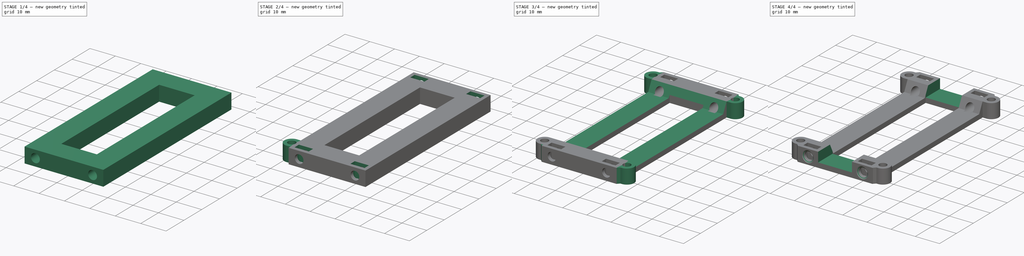
[diagram: build sequence overview — one tinted view per stage of 4, left to right]
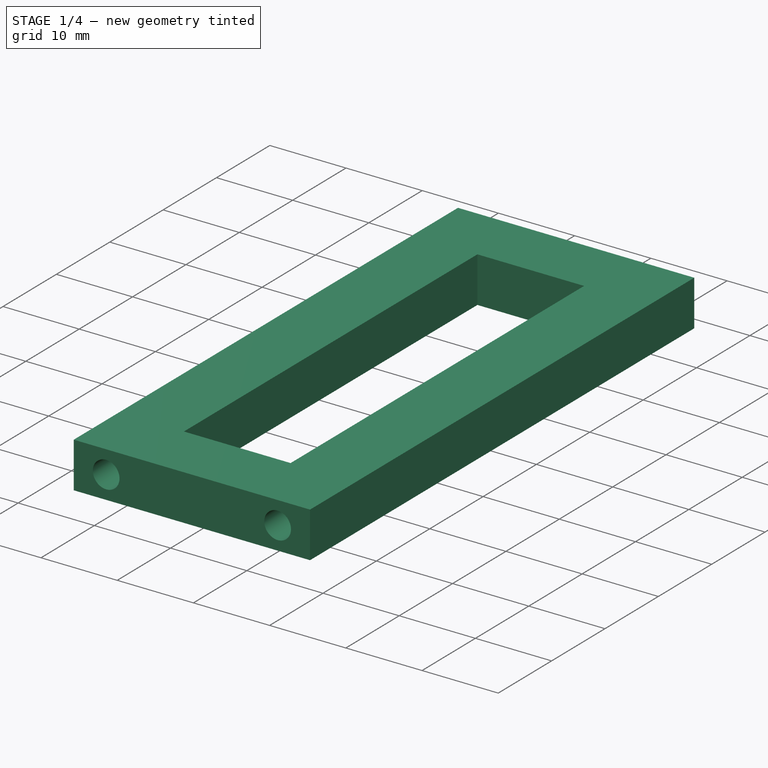
[diagram: stage 1 of 4 — iso view after this stage's code; geometry added in this stage tinted green]
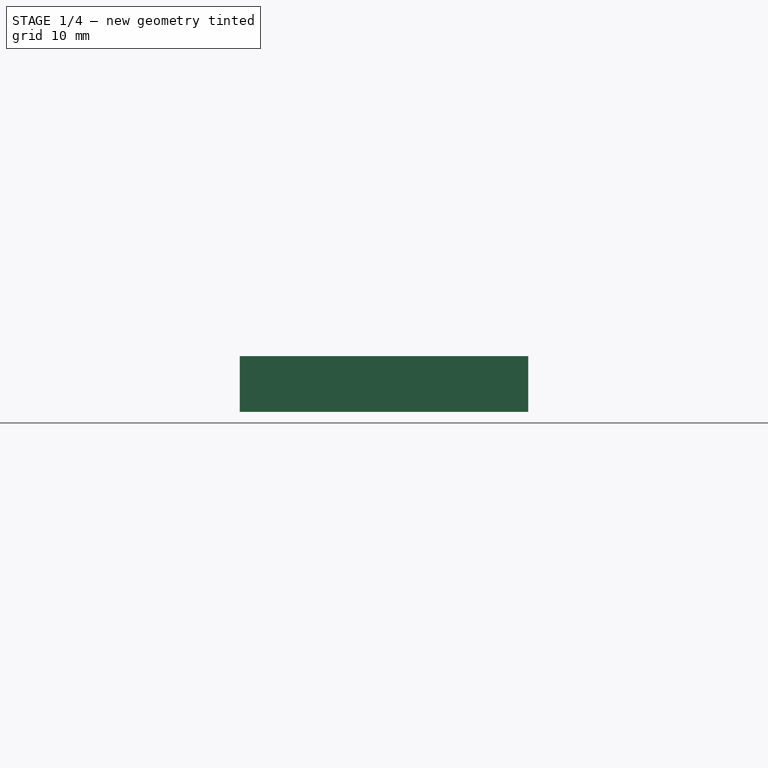
[diagram: stage 1 of 4 — front view after this stage's code; geometry added in this stage tinted green]
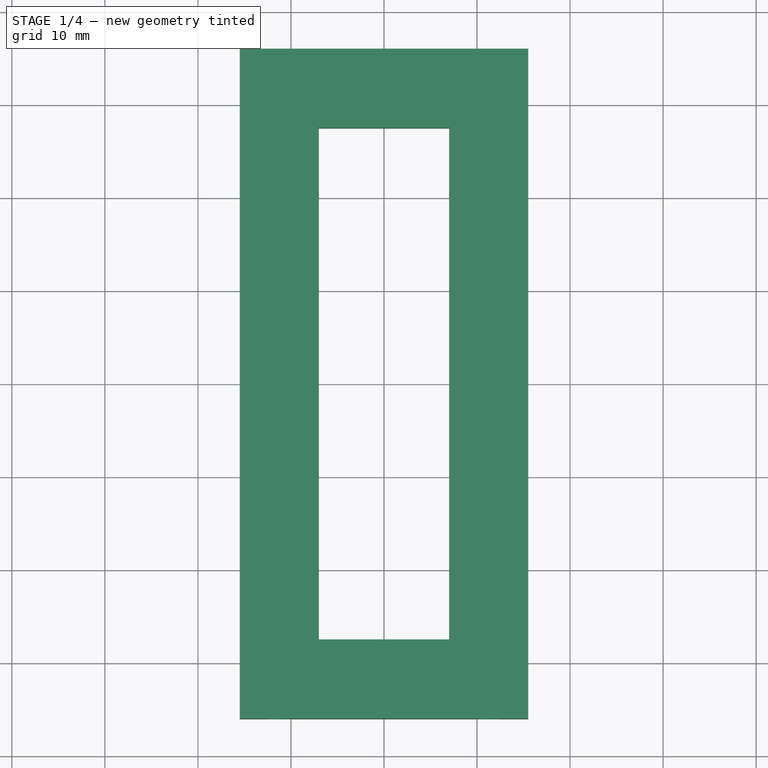
[diagram: stage 1 of 4 — top view after this stage's code; geometry added in this stage tinted green]
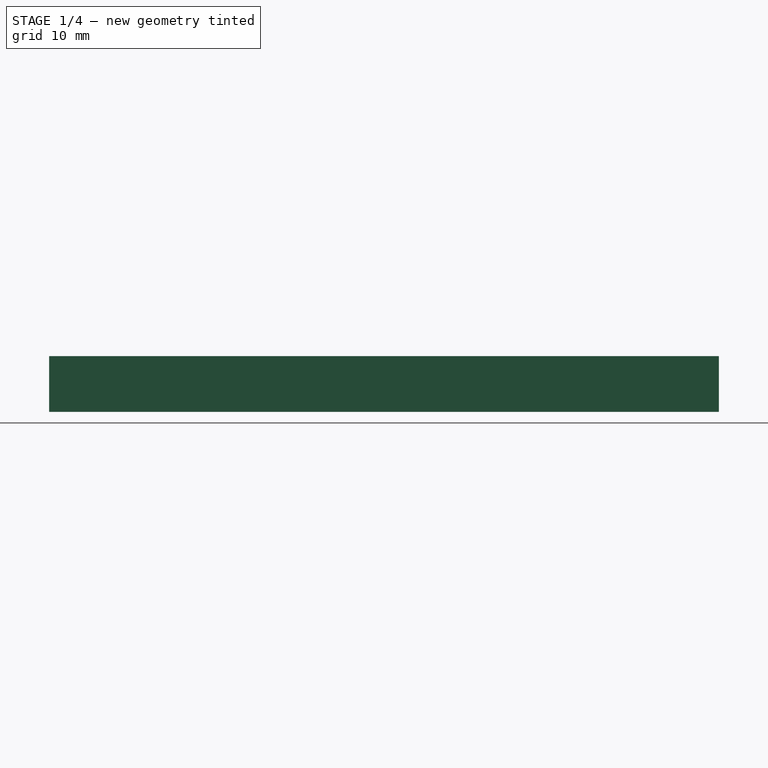
[diagram: stage 1 of 4 — right view after this stage's code; geometry added in this stage tinted green]
FCSTD DOCUMENT  (FreeCAD 0.16R6703 (Git))
Label: PartConnector
License: All rights reserved
LicenseURL: http://en.wikipedia.org/wiki/All_rights_reserved
objects: Sketcher::SketchObject×7, PartDesign::Pocket×5, PartDesign::Mirrored×5, PartDesign::Pad×2, PartDesign::MultiTransform×2, PartDesign::Chamfer×2
note: 30 computed .brp shape members not serialized (recipe doc carries the construction recipe); baked Part::Feature solids carry a one-line shape summary decoded from their .brp

FEATURE [Sketcher::SketchObject] Sketch
  expr: Constraints[21] = 22.5 - 2 * (0.5 * 5.5 + 1.5)
  expr: Constraints[20] = 72 - 2 * (5.5 + 3)
  expr: Constraints[9] = 22.5 + 5.5 + 3
  sketch-geometry (8):
    g0: LineSegment StartX=-15.5 StartY=36 StartZ=0 EndX=15.5 EndY=36 EndZ=0
    g1: LineSegment StartX=15.5 StartY=36 StartZ=0 EndX=15.5 EndY=-36 EndZ=0
    g2: LineSegment StartX=15.5 StartY=-36 StartZ=0 EndX=-15.5 EndY=-36 EndZ=0
    g3: LineSegment StartX=-15.5 StartY=-36 StartZ=0 EndX=-15.5 EndY=36 EndZ=0
    g4: LineSegment StartX=-7 StartY=27.5 StartZ=0 EndX=7 EndY=27.5 EndZ=0
    g5: LineSegment StartX=7 StartY=27.5 StartZ=0 EndX=7 EndY=-27.5 EndZ=0
    g6: LineSegment StartX=7 StartY=-27.5 StartZ=0 EndX=-7 EndY=-27.5 EndZ=0
    g7: LineSegment StartX=-7 StartY=-27.5 StartZ=0 EndX=-7 EndY=27.5 EndZ=0
  constraints (22):
    c: Coincident(g0,g1)
    c: Coincident(g1,g2)
    c: Coincident(g2,g3)
    c: Coincident(g3,g0)
    c: Horizontal(g0)
    c: Horizontal(g2)
    c: Vertical(g1)
    c: Vertical(g3)
    c: Symmetric(g2,g0,g-1)
    c: Distance(g0) = 31
    c: Distance(g3) = 72
    c: Coincident(g4,g5)
    c: Coincident(g5,g6)
    c: Coincident(g6,g7)
    c: Coincident(g7,g4)
    c: Horizontal(g4)
    c: Horizontal(g6)
    c: Vertical(g5)
    c: Vertical(g7)
    c: Symmetric(g6,g4,g-1)
    c: Distance(g7) = 55
    c: Distance(g6) = 14
FEATURE [PartDesign::Pad] Pad
  Length = 6
  Length2 = 100
  Midplane = true
  Sketch = -> Sketch
  Type = 0
FEATURE [Sketcher::SketchObject] Sketch001
  Placement = pos=(0,-36,0) rot=(1,0,0;1.5708rad)
  Support = -> Pad [Face3]
  sketch-geometry (2):
    g0: Circle CenterX=-11.25 CenterY=0 CenterZ=0 NormalX=0 NormalY=0 NormalZ=1 Radius=1.75
    g1: Circle CenterX=11.25 CenterY=0 CenterZ=0 NormalX=0 NormalY=0 NormalZ=1 Radius=1.75
  constraints (6):
    c: PointOnObject(g0,g-1)
    c: PointOnObject(g1,g-1)
    c: Symmetric(g0,g1,g-2)
    c: Distance(g0,g1) = 22.5
    c: Equal(g0,g1)
    c: Radius(g0) = 1.75
FEATURE [PartDesign::Pocket] Pocket  label="PlateCScrew1"
  Length = 10
  Sketch = -> Sketch001
  Type = 0
FEATURE [Sketcher::SketchObject] Sketch002
  Placement = pos=(0,36,0) rot=(0,0.707107,0.707107;3.14159rad)
  Support = -> Pocket [Face1]
  sketch-geometry (2):
    g0: Circle CenterX=-11.25 CenterY=0 CenterZ=0 NormalX=0 NormalY=0 NormalZ=1 Radius=1.75
    g1: Circle CenterX=11.25 CenterY=0 CenterZ=0 NormalX=0 NormalY=0 NormalZ=1 Radius=1.75
  constraints (6):
    c: PointOnObject(g0,g-1)
    c: PointOnObject(g1,g-1)
    c: Equal(g0,g1)
    c: Radius(g0) = 1.75
    c: Distance(g0,g1) = 22.5
    c: Symmetric(g0,g1,g-2)
FEATURE [PartDesign::Pocket] Pocket001  label="PlateCScrew2"
  Length = 10
  Sketch = -> Sketch002
  Type = 0
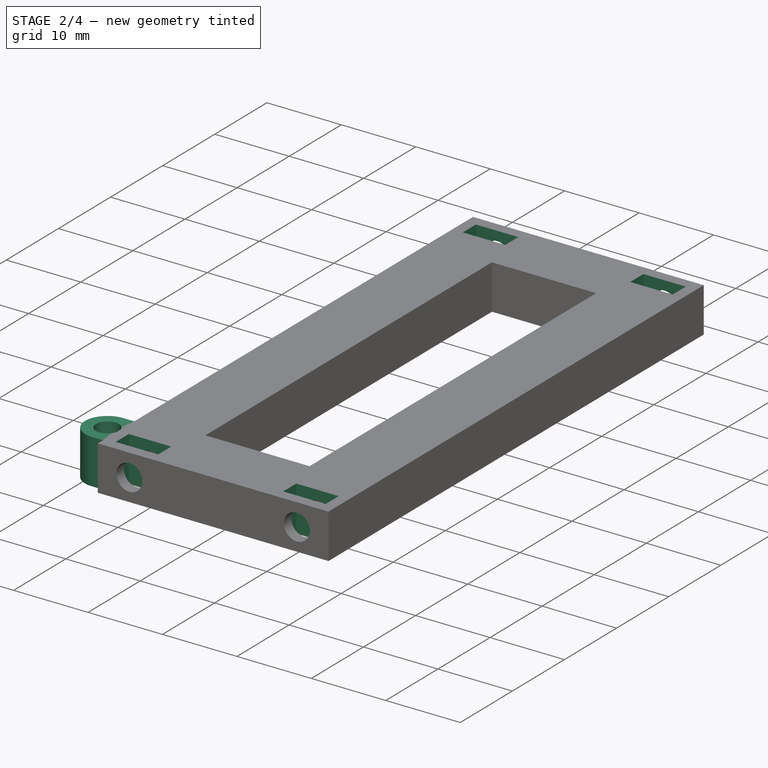
[diagram: stage 2 of 4 — iso view after this stage's code; geometry added in this stage tinted green]
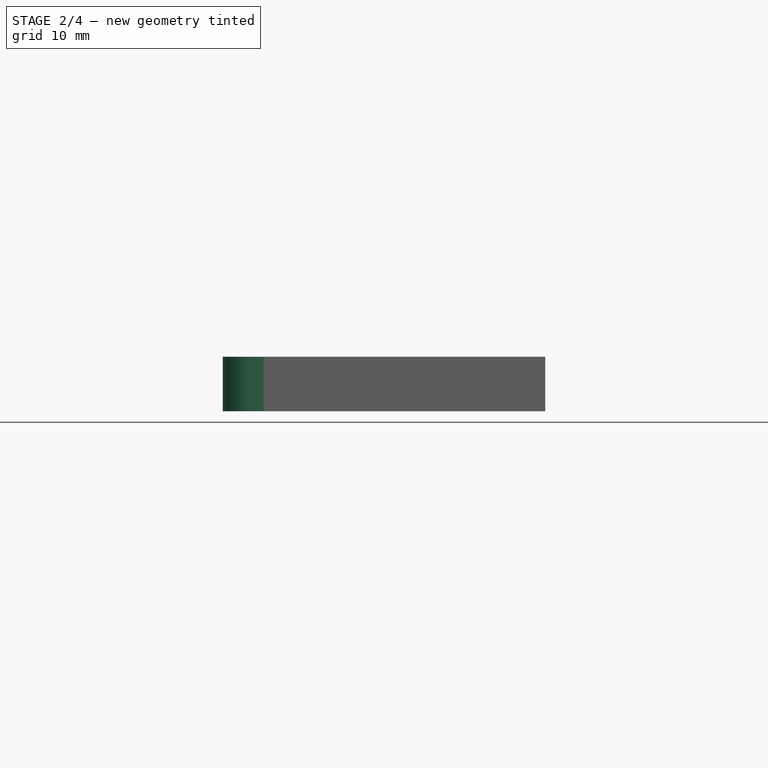
[diagram: stage 2 of 4 — front view after this stage's code; geometry added in this stage tinted green]
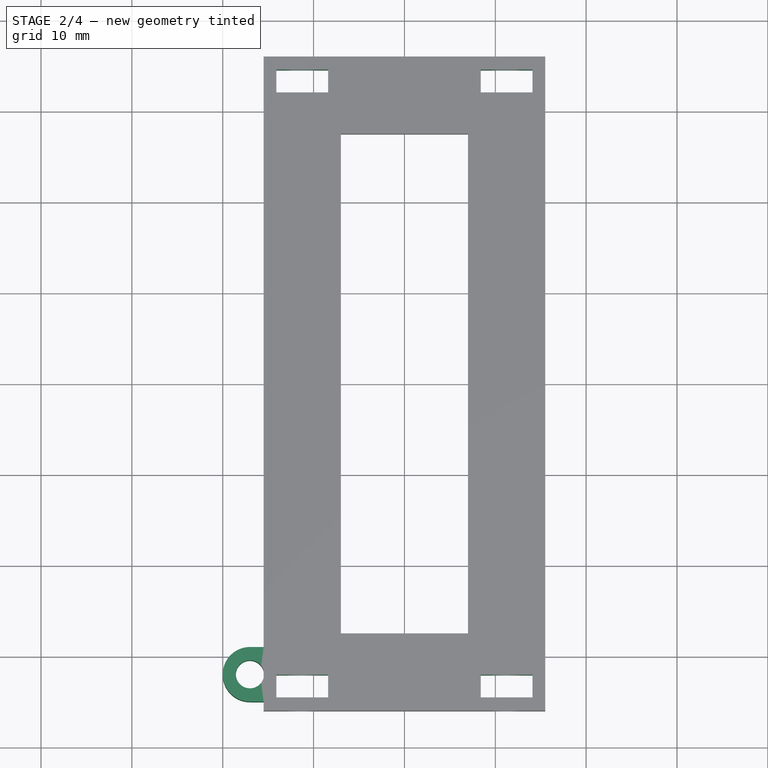
[diagram: stage 2 of 4 — top view after this stage's code; geometry added in this stage tinted green]
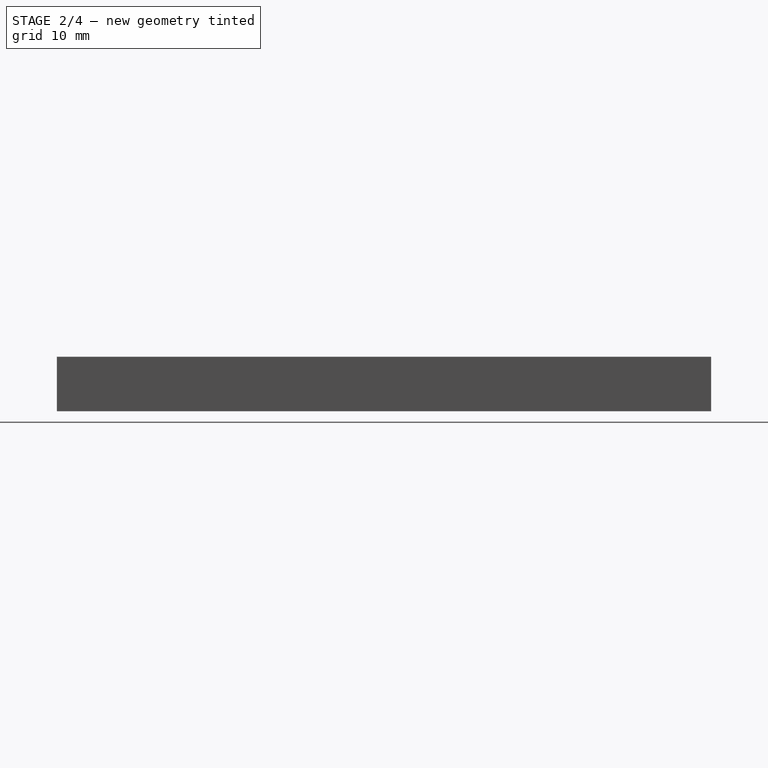
[diagram: stage 2 of 4 — right view after this stage's code; geometry added in this stage tinted green]
FEATURE [Sketcher::SketchObject] Sketch003
  Placement = pos=(0,0,3) rot=(0,0,1;0rad)
  Support = -> Pocket001 [Face4]
  expr: Constraints[10] = 72 - 2 * (1.2 + 1.5)
  sketch-geometry (8):
    g0: LineSegment [constr] StartX=-11.25 StartY=33.3 StartZ=0 EndX=11.25 EndY=33.3 EndZ=0
    g1: LineSegment [constr] StartX=11.25 StartY=33.3 StartZ=0 EndX=11.25 EndY=-33.3 EndZ=0
    g2: LineSegment [constr] StartX=11.25 StartY=-33.3 StartZ=0 EndX=-11.25 EndY=-33.3 EndZ=0
    g3: LineSegment [constr] StartX=-11.25 StartY=-33.3 StartZ=0 EndX=-11.25 EndY=33.3 EndZ=0
    g4: LineSegment StartX=-14.1 StartY=-34.55 StartZ=0 EndX=-8.4 EndY=-34.55 EndZ=0
    g5: LineSegment StartX=-8.4 StartY=-34.55 StartZ=0 EndX=-8.4 EndY=-32.05 EndZ=0
    g6: LineSegment StartX=-8.4 StartY=-32.05 StartZ=0 EndX=-14.1 EndY=-32.05 EndZ=0
    g7: LineSegment StartX=-14.1 StartY=-32.05 StartZ=0 EndX=-14.1 EndY=-34.55 EndZ=0
  constraints (22):
    c: Coincident(g0,g1)
    c: Coincident(g1,g2)
    c: Coincident(g2,g3)
    c: Coincident(g3,g0)
    c: Horizontal(g0)
    c: Horizontal(g2)
    c: Vertical(g1)
    c: Vertical(g3)
    c: Symmetric(g0,g1,g-1)
    c: Distance(g0) = 22.5
    c: Distance(g3) = 66.6
    c: Coincident(g4,g5)
    c: Coincident(g5,g6)
    c: Coincident(g6,g7)
    c: Coincident(g7,g4)
    c: Horizontal(g4)
    c: Horizontal(g6)
    c: Vertical(g5)
    c: Vertical(g7)
    c: Symmetric(g4,g5,g2)
    c: Distance(g6) = 5.7
    c: Distance(g7) = 2.5
FEATURE [PartDesign::Pocket] Pocket002  label="PlateNuts"
  Length = 3
  Sketch = -> Sketch003
  Type = 1
FEATURE [PartDesign::Mirrored] Mirrored
  MirrorPlane = -> Sketch003 [V_Axis]
FEATURE [PartDesign::Mirrored] Mirrored001
  MirrorPlane = -> Sketch003 [H_Axis]
FEATURE [PartDesign::MultiTransform] MultiTransform  label="Nut Placement"
  Originals = -> [Pocket002]
  Transformations = -> [Mirrored,Mirrored001]
FEATURE [Sketcher::SketchObject] Sketch004
  Placement = pos=(0,0,-3) rot=(1,0,0;3.14159rad)
  Support = -> MultiTransform [Face3]
  expr: Constraints[14] = 1.5 + 1.5
  expr: Constraints[10] = 70 - 6
  expr: Constraints[9] = 40 - 6
  sketch-geometry (9):
    g0: LineSegment [constr] StartX=-17 StartY=32 StartZ=0 EndX=17 EndY=32 EndZ=0
    g1: LineSegment [constr] StartX=17 StartY=32 StartZ=0 EndX=17 EndY=-32 EndZ=0
    g2: LineSegment [constr] StartX=17 StartY=-32 StartZ=0 EndX=-17 EndY=-32 EndZ=0
    g3: LineSegment [constr] StartX=-17 StartY=-32 StartZ=0 EndX=-17 EndY=32 EndZ=0
    g4: ArcOfCircle CenterX=-17 CenterY=32 CenterZ=0 NormalX=0 NormalY=0 NormalZ=1 Radius=3 StartAngle=1.5708 EndAngle=4.71239
    g5: LineSegment StartX=-17 StartY=35 StartZ=0 EndX=-15 EndY=35 EndZ=0
    g6: LineSegment StartX=-15 StartY=35 StartZ=0 EndX=-15 EndY=29 EndZ=0
    g7: LineSegment StartX=-15 StartY=29 StartZ=0 EndX=-17 EndY=29 EndZ=0
    g8: Circle CenterX=-17 CenterY=32 CenterZ=0 NormalX=0 NormalY=0 NormalZ=1 Radius=1.55
  constraints (24):
    c: Coincident(g0,g1)
    c: Coincident(g1,g2)
    c: Coincident(g2,g3)
    c: Coincident(g3,g0)
    c: Horizontal(g0)
    c: Horizontal(g2)
    c: Vertical(g1)
    c: Vertical(g3)
    c: Symmetric(g2,g0,g-1)
    c: Distance(g0) = 34
    c: Distance(g1) = 64
    c: Coincident(g4,g0)
    c: PointOnObject(g4,g3)
    c: Angle(g4) = 3.14159
    c: Radius(g4) = 3
    c: Tangent(g4,g5) = 1.5708
    c: Coincident(g5,g6)
    c: Vertical(g6)
    c: Coincident(g6,g7)
    c: Coincident(g7,g4)
    c: Horizontal(g7)
    c: Distance(g5) = 2
    c: Coincident(g8,g0)
    c: Radius(g8) = 1.55
FEATURE [PartDesign::Pad] Pad001  label="Upwards Connectors"
  Length = 6
  Length2 = 100
  Reversed = true
  Sketch = -> Sketch004
  Type = 0
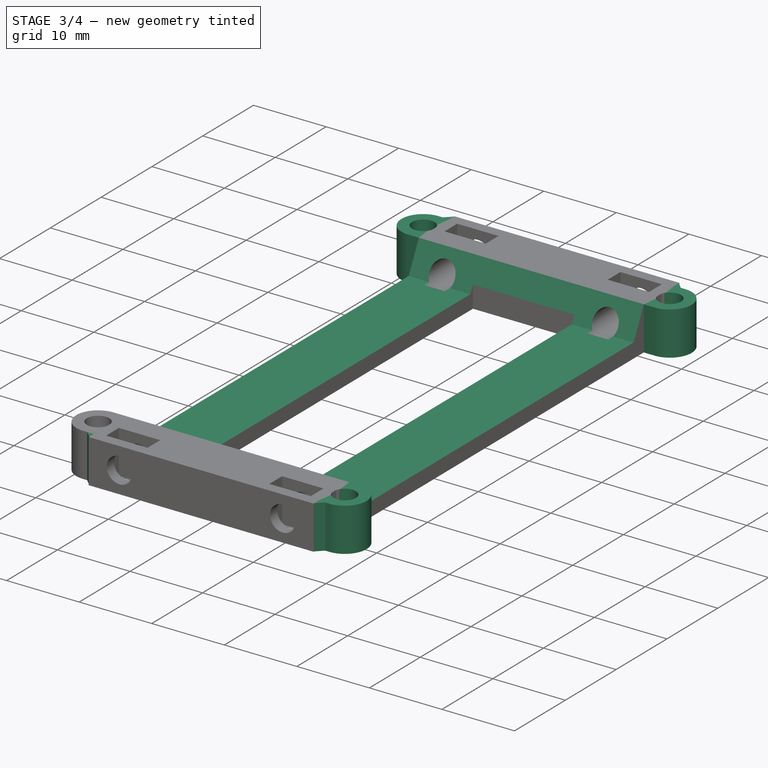
[diagram: stage 3 of 4 — iso view after this stage's code; geometry added in this stage tinted green]
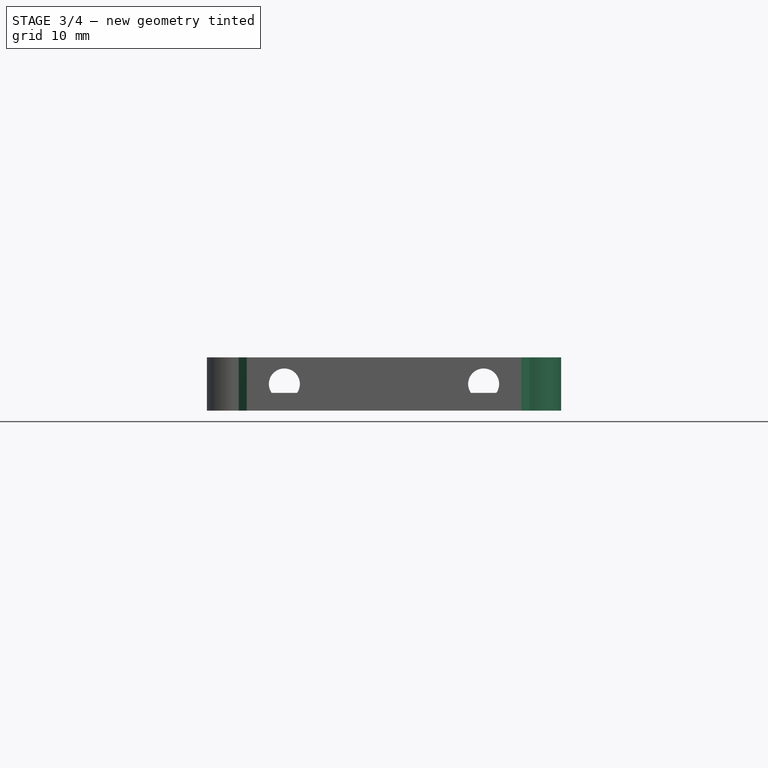
[diagram: stage 3 of 4 — front view after this stage's code; geometry added in this stage tinted green]
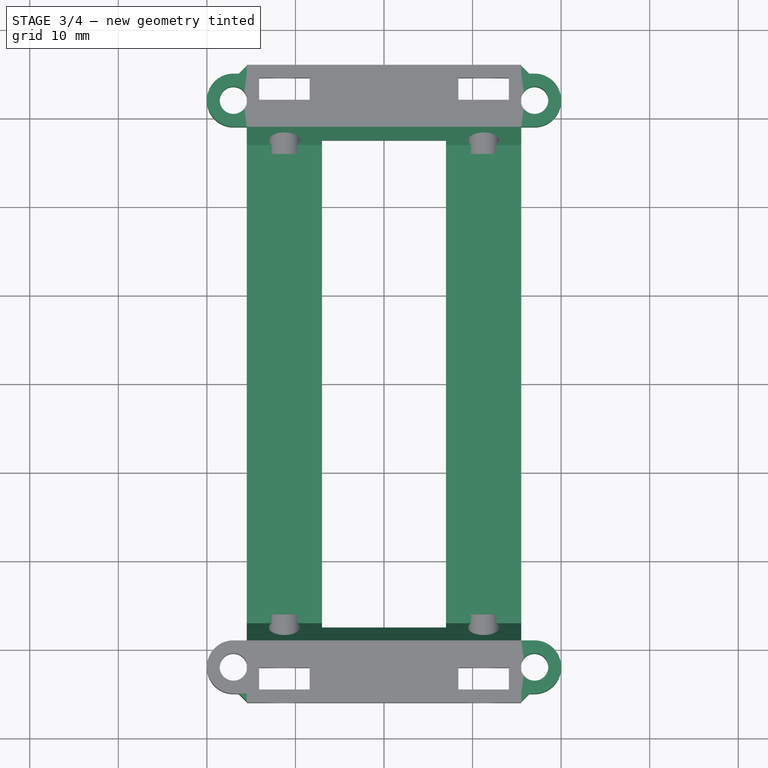
[diagram: stage 3 of 4 — top view after this stage's code; geometry added in this stage tinted green]
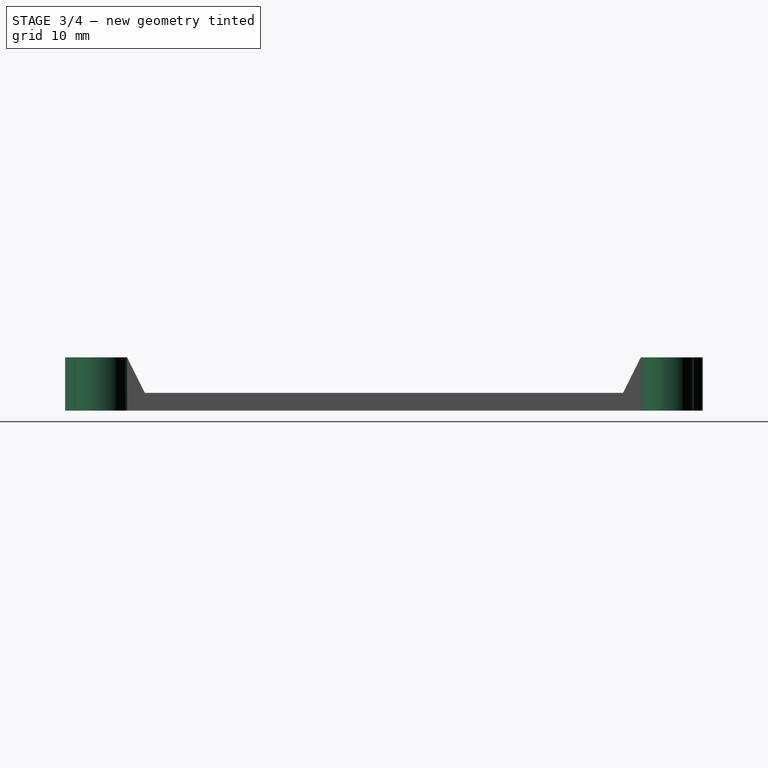
[diagram: stage 3 of 4 — right view after this stage's code; geometry added in this stage tinted green]
FEATURE [PartDesign::Mirrored] Mirrored002
  MirrorPlane = -> Sketch004 [V_Axis]
FEATURE [PartDesign::Mirrored] Mirrored003
  MirrorPlane = -> Sketch004 [H_Axis]
FEATURE [PartDesign::MultiTransform] MultiTransform001  label="Connector Placement"
  Originals = -> [Pad001]
  Transformations = -> [Mirrored002,Mirrored003]
FEATURE [Sketcher::SketchObject] Sketch005
  ExternalGeometry = -> [MultiTransform001]
  Placement = pos=(15.5,0,0) rot=(0.57735,0.57735,0.57735;2.0944rad)
  Support = -> MultiTransform001 [Face21]
  sketch-geometry (4):
    g0: LineSegment StartX=-27 StartY=-1 StartZ=0 EndX=27 EndY=-1 EndZ=0
    g1: LineSegment StartX=27 StartY=-1 StartZ=0 EndX=29 EndY=3 EndZ=0
    g2: LineSegment StartX=29 StartY=3 StartZ=0 EndX=-29 EndY=3 EndZ=0
    g3: LineSegment StartX=-29 StartY=3 StartZ=0 EndX=-27 EndY=-1 EndZ=0
  constraints (8):
    c: Horizontal(g0)
    c: Coincident(g0,g1)
    c: Coincident(g1,g2)
    c: Horizontal(g2)
    c: Coincident(g2,g3)
    c: Coincident(g3,g0)
    c: Symmetric(g0,g0,g-2)
    c: Symmetric(g1,g2,g-2)
FEATURE [PartDesign::Pocket] Pocket003  label="Prettifyer Pocket"
  Length = 5
  Sketch = -> Sketch005
  Type = 1
FEATURE [PartDesign::Chamfer] Chamfer  label="Outer Edge Chamfer"
  Base = -> Pocket003 [Edge6,Edge146,Edge133,Edge152]
  Size = 0.9
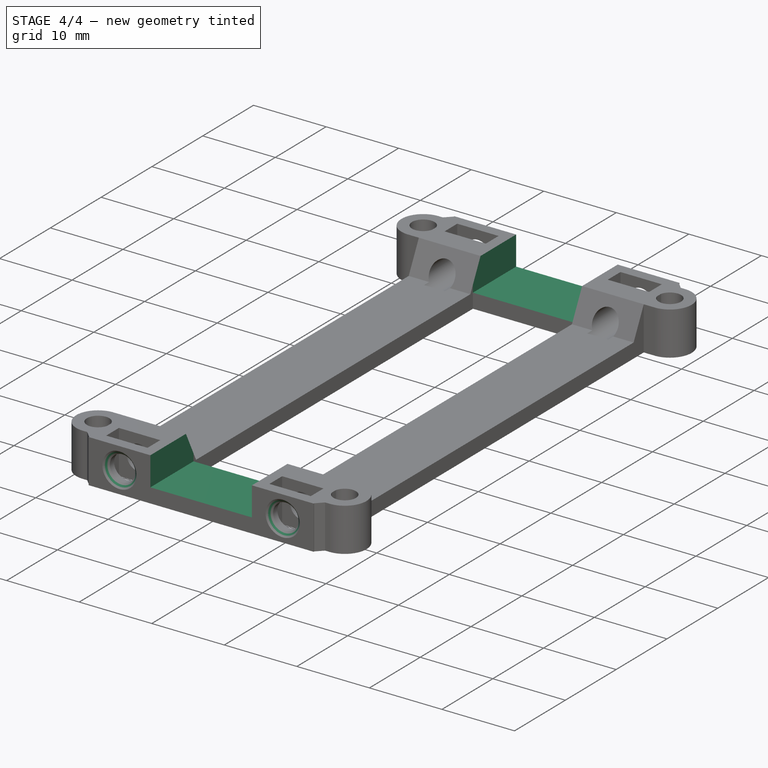
[diagram: stage 4 of 4 — iso view after this stage's code; geometry added in this stage tinted green]
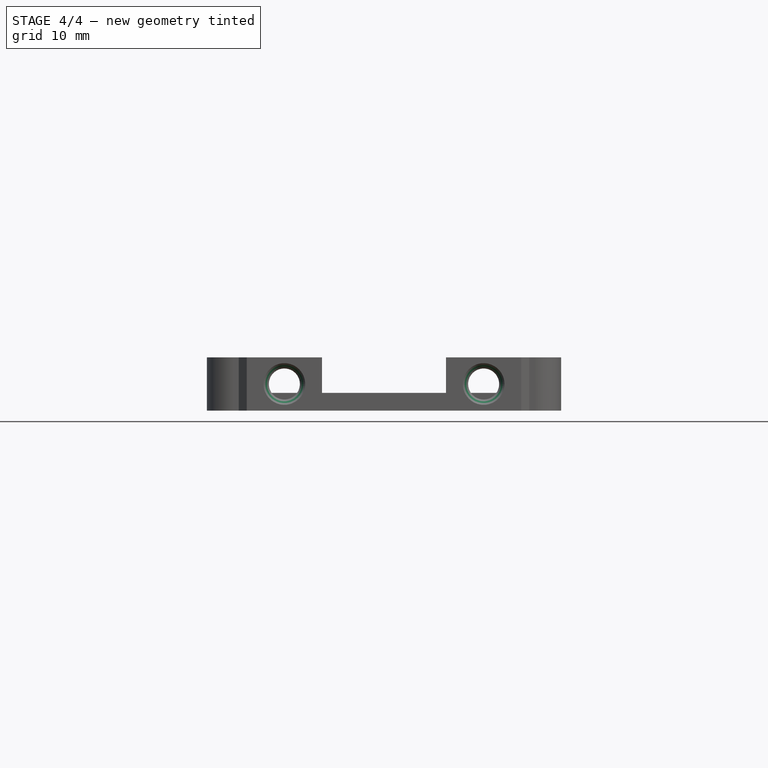
[diagram: stage 4 of 4 — front view after this stage's code; geometry added in this stage tinted green]
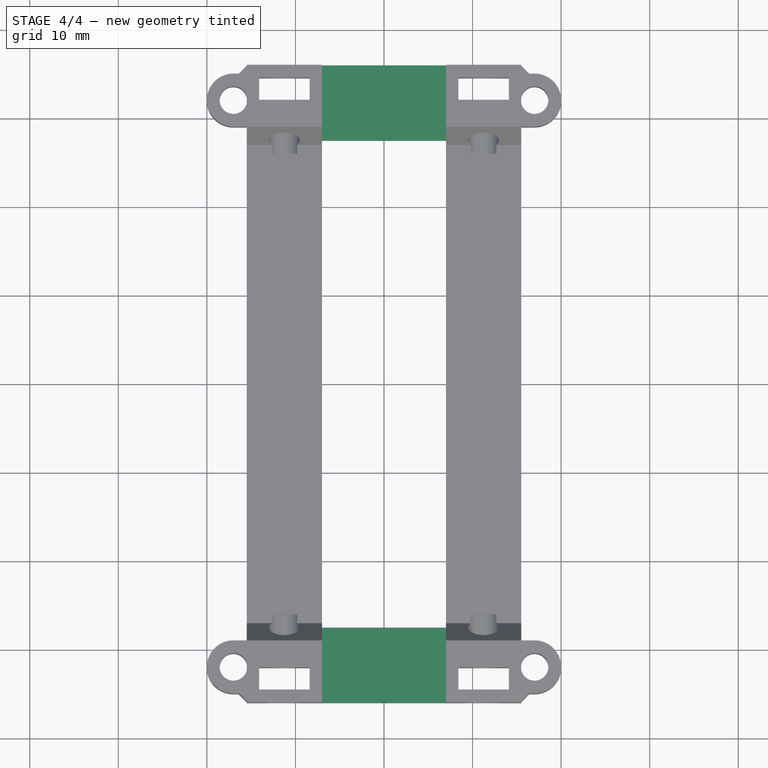
[diagram: stage 4 of 4 — top view after this stage's code; geometry added in this stage tinted green]
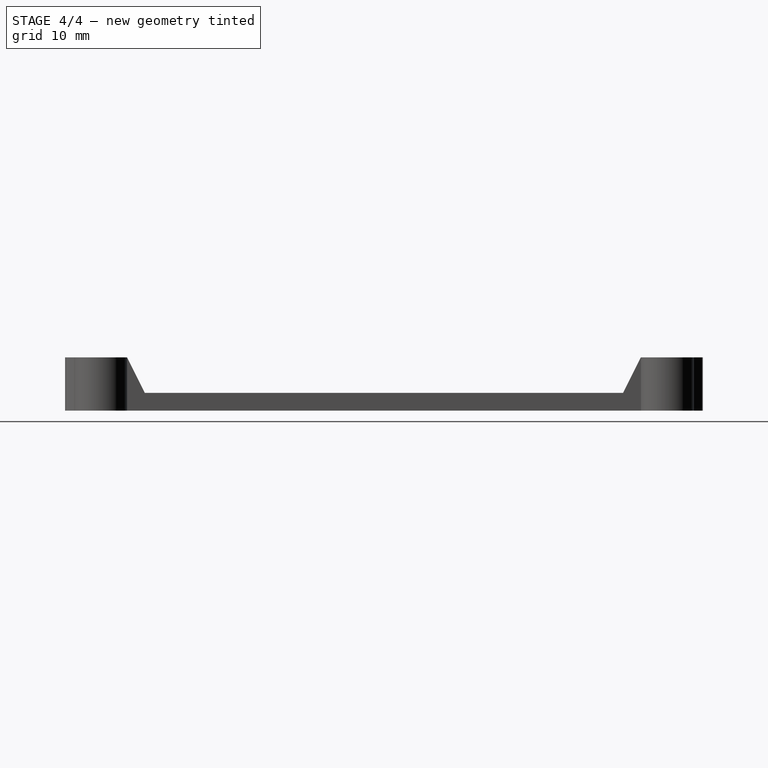
[diagram: stage 4 of 4 — right view after this stage's code; geometry added in this stage tinted green]
FEATURE [PartDesign::Chamfer] Chamfer001  label="Connector Screw Chamfer"
  Base = -> Chamfer [Edge103,Edge102,Edge137,Edge138]
  Size = 0.6
FEATURE [Sketcher::SketchObject] Sketch006
  ExternalGeometry = -> [Chamfer001]
  Placement = pos=(0,0,3) rot=(0,0,1;0rad)
  Support = -> Chamfer001 [Face72]
  sketch-geometry (4):
    g0: LineSegment StartX=-7 StartY=36 StartZ=0 EndX=7 EndY=36 EndZ=0
    g1: LineSegment StartX=7 StartY=36 StartZ=0 EndX=7 EndY=27 EndZ=0
    g2: LineSegment StartX=7 StartY=27 StartZ=0 EndX=-7 EndY=27 EndZ=0
    g3: LineSegment StartX=-7 StartY=27 StartZ=0 EndX=-7 EndY=36 EndZ=0
  constraints (11):
    c: Coincident(g0,g1)
    c: Coincident(g1,g2)
    c: Coincident(g2,g3)
    c: Coincident(g3,g0)
    c: Horizontal(g0)
    c: Horizontal(g2)
    c: Vertical(g1)
    c: Vertical(g3)
    c: PointOnObject(g0,g-3)
    c: Symmetric(g0,g0,g-2)
    c: Coincident(g2,g-4)
FEATURE [PartDesign::Pocket] Pocket004  label="Screw Distancing"
  Length = 4
  Sketch = -> Sketch006
  Type = 0
FEATURE [PartDesign::Mirrored] Mirrored004  label="Screw Spacer Mirror"
  MirrorPlane = -> Sketch006 [H_Axis]
  Originals = -> [Pocket004]
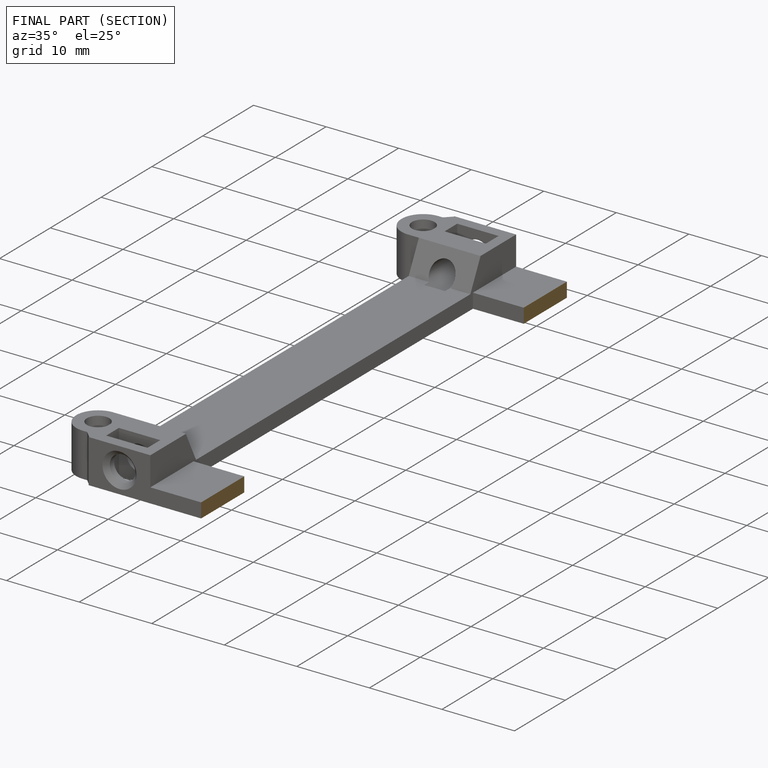
[diagram: finished part — half-section view (interior)]
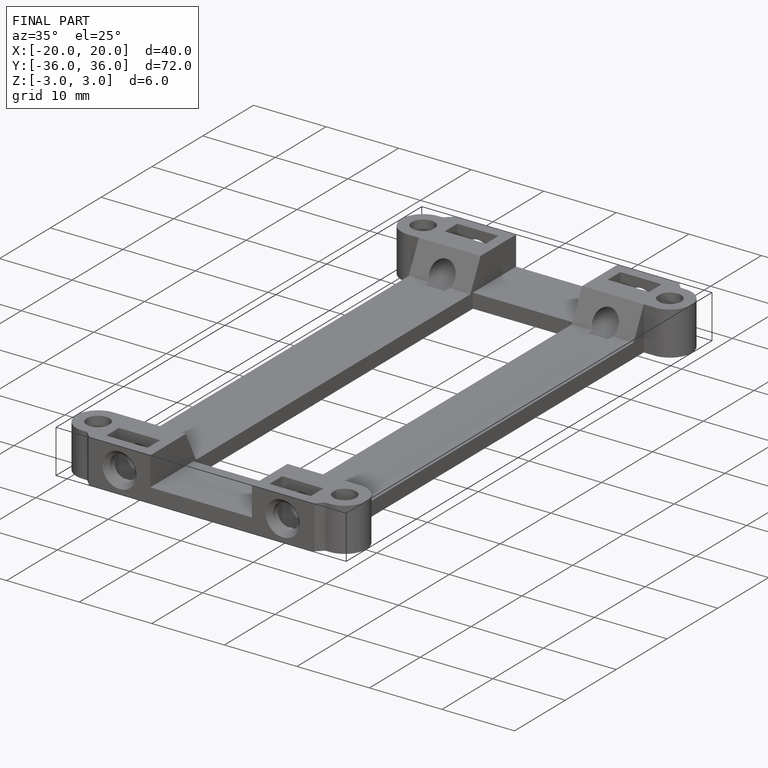
[diagram: finished part — iso view with bounding-box wireframe]
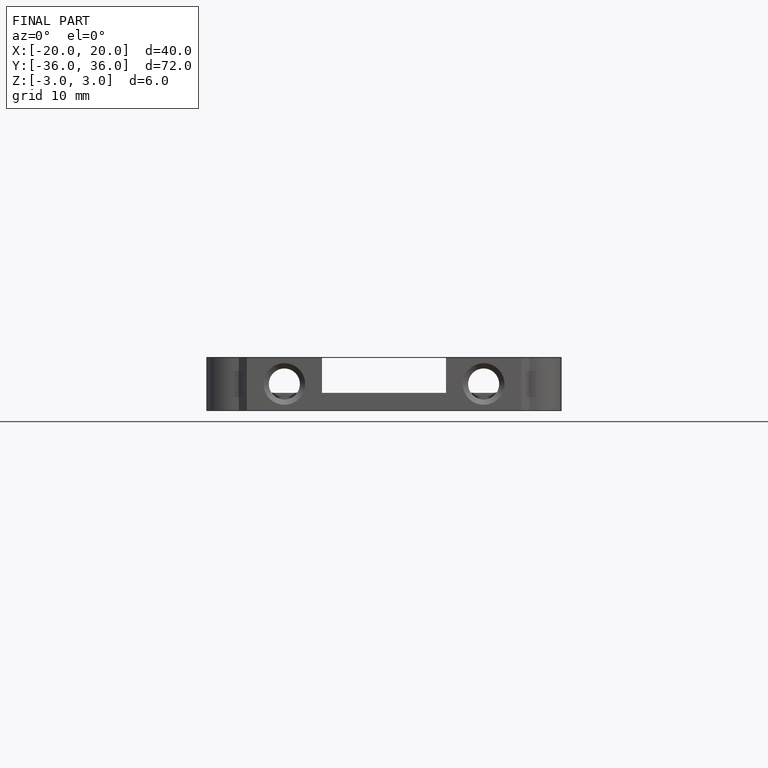
[diagram: finished part — front view with bounding-box wireframe]
